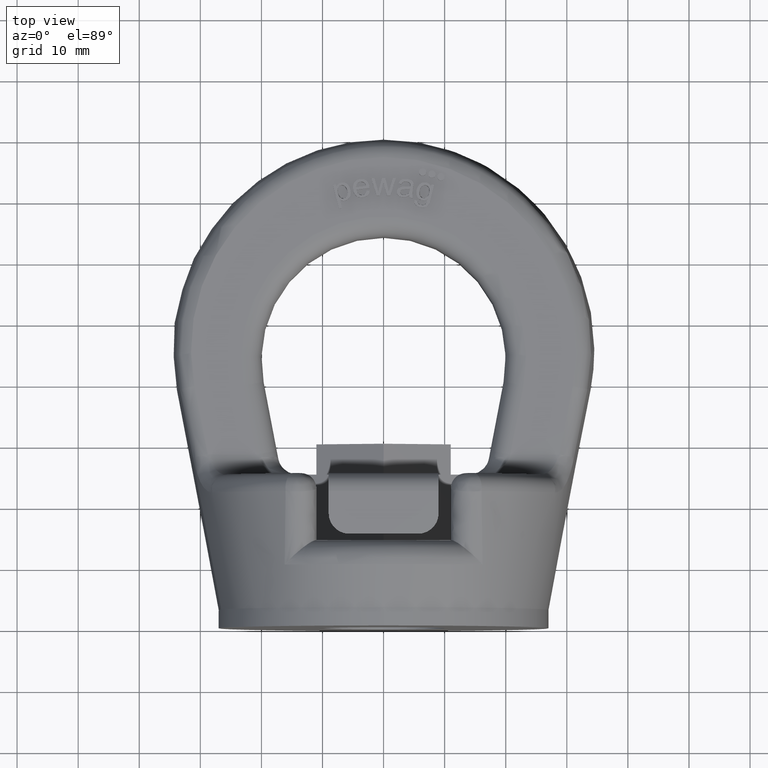
[diagram: clean part render]
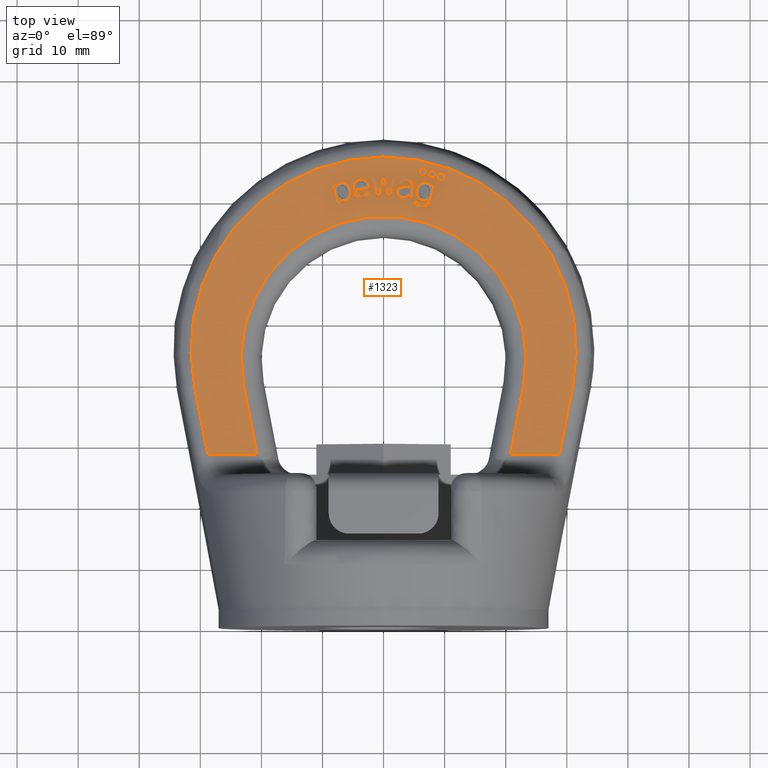
[diagram: same view with one face highlighted and labeled with its STEP entity id]
A machine part, top view. The second image highlights one B-rep face of the part: STEP entity #1323.
In plain terms, the highlighted planar face has unit normal (0, -0, -1).
Its self-contained STEP definition (entity closure, byte-faithful):
#1323=ADVANCED_FACE('',(#1770,#1771,#1772,#1773,#1774,#1775,#1776,#1777,
#1778),#1563,.F.);
#1563=PLANE('',#5106);
#1676=CIRCLE('',#5101,0.6);
#1677=CIRCLE('',#5102,0.600000000000001);
#1678=CIRCLE('',#5103,0.6);
#1679=CIRCLE('',#5104,23.3333333333333);
#1680=CIRCLE('',#5105,31.5238005322962);
#1770=FACE_BOUND('',#1828,.T.);
#1771=FACE_BOUND('',#1829,.T.);
#1772=FACE_BOUND('',#1830,.T.);
#1773=FACE_BOUND('',#1831,.T.);
#1774=FACE_BOUND('',#1832,.T.);
#1775=FACE_BOUND('',#1833,.T.);
#1776=FACE_BOUND('',#1834,.T.);
#1777=FACE_BOUND('',#1835,.T.);
#1778=FACE_BOUND('',#1836,.T.);
#1828=EDGE_LOOP('',(#2700,#2701,#2702,#2703,#2704,#2705,#2706));
#1829=EDGE_LOOP('',(#2707,#2708,#2709,#2710,#2711,#2712,#2713,#2714,#2715,
#2716,#2717,#2718,#2719,#2720,#2721));
#1830=EDGE_LOOP('',(#2722,#2723,#2724,#2725,#2726));
#1831=EDGE_LOOP('',(#2727));
#1832=EDGE_LOOP('',(#2728));
#1833=EDGE_LOOP('',(#2729));
#1834=EDGE_LOOP('',(#2730,#2731,#2732,#2733,#2734,#2735,#2736,#2737));
#1835=EDGE_LOOP('',(#2738,#2739,#2740,#2741,#2742,#2743));
#1836=EDGE_LOOP('',(#2744,#2745,#2746,#2747,#2748,#2749,#2750,#2751,#2752));
#2104=LINE('',#6271,#2374);
#2105=LINE('',#6303,#2375);
#2106=LINE('',#6305,#2376);
#2107=LINE('',#6306,#2377);
#2108=LINE('',#6309,#2378);
#2109=LINE('',#6311,#2379);
#2110=LINE('',#6313,#2380);
#2111=LINE('',#6327,#2381);
#2112=LINE('',#6329,#2382);
#2113=LINE('',#6345,#2383);
#2114=LINE('',#6347,#2384);
#2115=LINE('',#6349,#2385);
#2116=LINE('',#6351,#2386);
#2117=LINE('',#6353,#2387);
#2118=LINE('',#6369,#2388);
#2119=LINE('',#6392,#2389);
#2120=LINE('',#6402,#2390);
#2121=LINE('',#6404,#2391);
#2122=LINE('',#6418,#2392);
#2123=LINE('',#6420,#2393);
#2124=LINE('',#6421,#2394);
#2125=LINE('',#6424,#2395);
#2126=LINE('',#6426,#2396);
#2127=LINE('',#6428,#2397);
#2128=LINE('',#6430,#2398);
#2129=LINE('',#6454,#2399);
#2130=LINE('',#6499,#2400);
#2374=VECTOR('',#5377,1.);
#2375=VECTOR('',#5378,1.);
#2376=VECTOR('',#5379,1.);
#2377=VECTOR('',#5380,1.);
#2378=VECTOR('',#5381,1.);
#2379=VECTOR('',#5382,1.);
#2380=VECTOR('',#5383,1.);
#2381=VECTOR('',#5384,1.);
#2382=VECTOR('',#5385,1.);
#2383=VECTOR('',#5386,1.);
#2384=VECTOR('',#5387,1.);
#2385=VECTOR('',#5388,1.);
#2386=VECTOR('',#5389,1.);
#2387=VECTOR('',#5390,1.);
#2388=VECTOR('',#5391,1.);
#2389=VECTOR('',#5392,1.);
#2390=VECTOR('',#5401,1.);
#2391=VECTOR('',#5402,1.);
#2392=VECTOR('',#5405,1.);
#2393=VECTOR('',#5406,1.);
#2394=VECTOR('',#5407,1.);
#2395=VECTOR('',#5408,1.);
#2396=VECTOR('',#5409,1.);
#2397=VECTOR('',#5410,1.);
#2398=VECTOR('',#5411,1.);
#2399=VECTOR('',#5412,1.);
#2400=VECTOR('',#5413,1.);
#2700=ORIENTED_EDGE('',*,*,#4256,.T.);
#2701=ORIENTED_EDGE('',*,*,#4257,.T.);
#2702=ORIENTED_EDGE('',*,*,#4258,.T.);
#2703=ORIENTED_EDGE('',*,*,#4259,.T.);
#2704=ORIENTED_EDGE('',*,*,#4260,.T.);
#2705=ORIENTED_EDGE('',*,*,#4261,.T.);
#2706=ORIENTED_EDGE('',*,*,#4262,.T.);
#2707=ORIENTED_EDGE('',*,*,#4263,.T.);
#2708=ORIENTED_EDGE('',*,*,#4264,.T.);
#2709=ORIENTED_EDGE('',*,*,#4265,.T.);
#2710=ORIENTED_EDGE('',*,*,#4266,.T.);
#2711=ORIENTED_EDGE('',*,*,#4267,.T.);
#2712=ORIENTED_EDGE('',*,*,#4268,.T.);
#2713=ORIENTED_EDGE('',*,*,#4269,.T.);
#2714=ORIENTED_EDGE('',*,*,#4270,.T.);
#2715=ORIENTED_EDGE('',*,*,#4271,.T.);
#2716=ORIENTED_EDGE('',*,*,#4272,.T.);
#2717=ORIENTED_EDGE('',*,*,#4273,.T.);
#2718=ORIENTED_EDGE('',*,*,#4274,.T.);
#2719=ORIENTED_EDGE('',*,*,#4275,.T.);
#2720=ORIENTED_EDGE('',*,*,#4276,.T.);
#2721=ORIENTED_EDGE('',*,*,#4277,.T.);
#2722=ORIENTED_EDGE('',*,*,#4278,.T.);
#2723=ORIENTED_EDGE('',*,*,#4279,.T.);
#2724=ORIENTED_EDGE('',*,*,#4280,.T.);
#2725=ORIENTED_EDGE('',*,*,#4281,.T.);
#2726=ORIENTED_EDGE('',*,*,#4282,.T.);
#2727=ORIENTED_EDGE('',*,*,#4283,.F.);
#2728=ORIENTED_EDGE('',*,*,#4284,.F.);
#2729=ORIENTED_EDGE('',*,*,#4285,.F.);
#2730=ORIENTED_EDGE('',*,*,#4286,.T.);
#2731=ORIENTED_EDGE('',*,*,#4287,.T.);
#2732=ORIENTED_EDGE('',*,*,#4288,.T.);
#2733=ORIENTED_EDGE('',*,*,#4289,.T.);
#2734=ORIENTED_EDGE('',*,*,#4290,.T.);
#2735=ORIENTED_EDGE('',*,*,#4291,.T.);
#2736=ORIENTED_EDGE('',*,*,#4292,.T.);
#2737=ORIENTED_EDGE('',*,*,#4293,.T.);
#2738=ORIENTED_EDGE('',*,*,#4294,.T.);
#2739=ORIENTED_EDGE('',*,*,#4295,.T.);
#2740=ORIENTED_EDGE('',*,*,#4296,.T.);
#2741=ORIENTED_EDGE('',*,*,#4297,.T.);
#2742=ORIENTED_EDGE('',*,*,#4298,.T.);
#2743=ORIENTED_EDGE('',*,*,#4299,.T.);
#2744=ORIENTED_EDGE('',*,*,#4300,.T.);
#2745=ORIENTED_EDGE('',*,*,#4301,.T.);
#2746=ORIENTED_EDGE('',*,*,#4302,.T.);
#2747=ORIENTED_EDGE('',*,*,#4303,.T.);
#2748=ORIENTED_EDGE('',*,*,#4304,.T.);
#2749=ORIENTED_EDGE('',*,*,#4305,.T.);
#2750=ORIENTED_EDGE('',*,*,#4306,.T.);
#2751=ORIENTED_EDGE('',*,*,#4307,.T.);
#2752=ORIENTED_EDGE('',*,*,#4308,.T.);
#3872=VERTEX_POINT('',#6264);
#3873=VERTEX_POINT('',#6265);
#3874=VERTEX_POINT('',#6270);
#3875=VERTEX_POINT('',#6272);
#3876=VERTEX_POINT('',#6285);
#3877=VERTEX_POINT('',#6302);
#3878=VERTEX_POINT('',#6304);
#3879=VERTEX_POINT('',#6307);
#3880=VERTEX_POINT('',#6308);
#3881=VERTEX_POINT('',#6310);
#3882=VERTEX_POINT('',#6312);
#3883=VERTEX_POINT('',#6314);
#3884=VERTEX_POINT('',#6321);
#3885=VERTEX_POINT('',#6326);
#3886=VERTEX_POINT('',#6328);
#3887=VERTEX_POINT('',#6330);
#3888=VERTEX_POINT('',#6337);
#3889=VERTEX_POINT('',#6344);
#3890=VERTEX_POINT('',#6346);
#3891=VERTEX_POINT('',#6348);
#3892=VERTEX_POINT('',#6350);
#3893=VERTEX_POINT('',#6352);
#3894=VERTEX_POINT('',#6362);
#3895=VERTEX_POINT('',#6363);
#3896=VERTEX_POINT('',#6368);
#3897=VERTEX_POINT('',#6370);
#3898=VERTEX_POINT('',#6391);
#3899=VERTEX_POINT('',#6394);
#3900=VERTEX_POINT('',#6396);
#3901=VERTEX_POINT('',#6398);
#3902=VERTEX_POINT('',#6400);
#3903=VERTEX_POINT('',#6401);
#3904=VERTEX_POINT('',#6403);
#3905=VERTEX_POINT('',#6405);
#3906=VERTEX_POINT('',#6410);
#3907=VERTEX_POINT('',#6412);
#3908=VERTEX_POINT('',#6417);
#3909=VERTEX_POINT('',#6419);
#3910=VERTEX_POINT('',#6422);
#3911=VERTEX_POINT('',#6423);
#3912=VERTEX_POINT('',#6425);
#3913=VERTEX_POINT('',#6427);
#3914=VERTEX_POINT('',#6429);
#3915=VERTEX_POINT('',#6431);
#3916=VERTEX_POINT('',#6455);
#3917=VERTEX_POINT('',#6456);
#3918=VERTEX_POINT('',#6461);
#3919=VERTEX_POINT('',#6478);
#3920=VERTEX_POINT('',#6485);
#3921=VERTEX_POINT('',#6498);
#3922=VERTEX_POINT('',#6500);
#3923=VERTEX_POINT('',#6505);
#3924=VERTEX_POINT('',#6518);
#4256=EDGE_CURVE('',#3872,#3873,#4842,.T.);
#4257=EDGE_CURVE('',#3873,#3874,#4843,.T.);
#4258=EDGE_CURVE('',#3874,#3875,#2104,.T.);
#4259=EDGE_CURVE('',#3875,#3876,#4844,.T.);
#4260=EDGE_CURVE('',#3876,#3877,#4845,.T.);
#4261=EDGE_CURVE('',#3877,#3878,#2105,.T.);
#4262=EDGE_CURVE('',#3878,#3872,#2106,.T.);
#4263=EDGE_CURVE('',#3879,#3880,#2107,.T.);
#4264=EDGE_CURVE('',#3880,#3881,#2108,.T.);
#4265=EDGE_CURVE('',#3881,#3882,#2109,.T.);
#4266=EDGE_CURVE('',#3882,#3883,#2110,.T.);
#4267=EDGE_CURVE('',#3883,#3884,#4846,.T.);
#4268=EDGE_CURVE('',#3884,#3885,#4847,.T.);
#4269=EDGE_CURVE('',#3885,#3886,#2111,.T.);
#4270=EDGE_CURVE('',#3886,#3887,#2112,.T.);
#4271=EDGE_CURVE('',#3887,#3888,#4848,.T.);
#4272=EDGE_CURVE('',#3888,#3889,#4849,.T.);
#4273=EDGE_CURVE('',#3889,#3890,#2113,.T.);
#4274=EDGE_CURVE('',#3890,#3891,#2114,.T.);
#4275=EDGE_CURVE('',#3891,#3892,#2115,.T.);
#4276=EDGE_CURVE('',#3892,#3893,#2116,.T.);
#4277=EDGE_CURVE('',#3893,#3879,#2117,.T.);
#4278=EDGE_CURVE('',#3894,#3895,#4850,.T.);
#4279=EDGE_CURVE('',#3895,#3896,#4851,.T.);
#4280=EDGE_CURVE('',#3896,#3897,#2118,.T.);
#4281=EDGE_CURVE('',#3897,#3898,#4852,.T.);
#4282=EDGE_CURVE('',#3898,#3894,#2119,.T.);
#4283=EDGE_CURVE('',#3899,#3899,#1676,.T.);
#4284=EDGE_CURVE('',#3900,#3900,#1677,.T.);
#4285=EDGE_CURVE('',#3901,#3901,#1678,.T.);
#4286=EDGE_CURVE('',#3902,#3903,#1679,.T.);
#4287=EDGE_CURVE('',#3903,#3904,#2120,.T.);
#4288=EDGE_CURVE('',#3904,#3905,#2121,.T.);
#4289=EDGE_CURVE('',#3905,#3906,#4853,.T.);
#4290=EDGE_CURVE('',#3906,#3907,#1680,.T.);
#4291=EDGE_CURVE('',#3907,#3908,#4854,.T.);
#4292=EDGE_CURVE('',#3908,#3909,#2122,.T.);
#4293=EDGE_CURVE('',#3909,#3902,#2123,.T.);
#4294=EDGE_CURVE('',#3910,#3911,#2124,.T.);
#4295=EDGE_CURVE('',#3911,#3912,#2125,.T.);
#4296=EDGE_CURVE('',#3912,#3913,#2126,.T.);
#4297=EDGE_CURVE('',#3913,#3914,#2127,.T.);
#4298=EDGE_CURVE('',#3914,#3915,#2128,.T.);
#4299=EDGE_CURVE('',#3915,#3910,#4855,.T.);
#4300=EDGE_CURVE('',#3916,#3917,#2129,.T.);
#4301=EDGE_CURVE('',#3917,#3918,#4856,.T.);
#4302=EDGE_CURVE('',#3918,#3919,#4857,.T.);
#4303=EDGE_CURVE('',#3919,#3920,#4858,.T.);
#4304=EDGE_CURVE('',#3920,#3921,#4859,.T.);
#4305=EDGE_CURVE('',#3921,#3922,#2130,.T.);
#4306=EDGE_CURVE('',#3922,#3923,#4860,.T.);
#4307=EDGE_CURVE('',#3923,#3924,#4861,.T.);
#4308=EDGE_CURVE('',#3924,#3916,#4862,.T.);
#4842=B_SPLINE_CURVE_WITH_KNOTS('',3,(#6252,#6253,#6254,#6255,#6256,#6257,
#6258,#6259,#6260,#6261,#6262,#6263),.UNSPECIFIED.,.F.,.F.,(4,2,2,2,2,4),
(0.,0.305645754892089,0.470829306249211,0.636012857606333,0.802206343843955,
1.),.UNSPECIFIED.);
#4843=B_SPLINE_CURVE_WITH_KNOTS('',3,(#6266,#6267,#6268,#6269),
 .UNSPECIFIED.,.F.,.F.,(4,4),(0.,1.),.UNSPECIFIED.);
#4844=B_SPLINE_CURVE_WITH_KNOTS('',3,(#6273,#6274,#6275,#6276,#6277,#6278,
#6279,#6280,#6281,#6282,#6283,#6284),.UNSPECIFIED.,.F.,.F.,(4,2,2,2,2,4),
(0.,0.163304651309284,0.382303784248524,0.619375661168187,0.85644753808786,
1.),.UNSPECIFIED.);
#4845=B_SPLINE_CURVE_WITH_KNOTS('',3,(#6286,#6287,#6288,#6289,#6290,#6291,
#6292,#6293,#6294,#6295,#6296,#6297,#6298,#6299,#6300,#6301),
 .UNSPECIFIED.,.F.,.F.,(4,2,2,2,2,2,2,4),(0.,0.139503666745451,0.312880428291714,
0.486257189837977,0.605370995480449,0.72385410568907,0.842337215897691,
1.),.UNSPECIFIED.);
#4846=B_SPLINE_CURVE_WITH_KNOTS('',3,(#6315,#6316,#6317,#6318,#6319,#6320),
 .UNSPECIFIED.,.F.,.F.,(4,2,4),(0.,0.728909607654965,1.),.UNSPECIFIED.);
#4847=B_SPLINE_CURVE_WITH_KNOTS('',3,(#6322,#6323,#6324,#6325),
 .UNSPECIFIED.,.F.,.F.,(4,4),(0.,1.),.UNSPECIFIED.);
#4848=B_SPLINE_CURVE_WITH_KNOTS('',3,(#6331,#6332,#6333,#6334,#6335,#6336),
 .UNSPECIFIED.,.F.,.F.,(4,2,4),(0.,0.752082276025118,1.),.UNSPECIFIED.);
#4849=B_SPLINE_CURVE_WITH_KNOTS('',3,(#6338,#6339,#6340,#6341,#6342,#6343),
 .UNSPECIFIED.,.F.,.F.,(4,2,4),(0.,0.250451922487275,1.),.UNSPECIFIED.);
#4850=B_SPLINE_CURVE_WITH_KNOTS('',3,(#6354,#6355,#6356,#6357,#6358,#6359,
#6360,#6361),.UNSPECIFIED.,.F.,.F.,(4,2,2,4),(0.,0.36347796861322,0.728087675912443,
1.),.UNSPECIFIED.);
#4851=B_SPLINE_CURVE_WITH_KNOTS('',3,(#6364,#6365,#6366,#6367),
 .UNSPECIFIED.,.F.,.F.,(4,4),(0.,1.),.UNSPECIFIED.);
#4852=B_SPLINE_CURVE_WITH_KNOTS('',3,(#6371,#6372,#6373,#6374,#6375,#6376,
#6377,#6378,#6379,#6380,#6381,#6382,#6383,#6384,#6385,#6386,#6387,#6388,
#6389,#6390),.UNSPECIFIED.,.F.,.F.,(4,2,2,2,2,2,2,2,2,4),(0.,0.102921203122042,
0.206156274885328,0.336063021724234,0.465707475917732,0.599570296299742,
0.733433116681749,0.862845255056168,0.992257393430591,1.),.UNSPECIFIED.);
#4853=B_SPLINE_CURVE_WITH_KNOTS('',3,(#6406,#6407,#6408,#6409),
 .UNSPECIFIED.,.F.,.F.,(4,4),(0.,1.),.UNSPECIFIED.);
#4854=B_SPLINE_CURVE_WITH_KNOTS('',3,(#6413,#6414,#6415,#6416),
 .UNSPECIFIED.,.F.,.F.,(4,4),(0.,1.),.UNSPECIFIED.);
#4855=B_SPLINE_CURVE_WITH_KNOTS('',3,(#6432,#6433,#6434,#6435,#6436,#6437,
#6438,#6439,#6440,#6441,#6442,#6443,#6444,#6445,#6446,#6447,#6448,#6449,
#6450,#6451,#6452,#6453),.UNSPECIFIED.,.F.,.F.,(4,2,2,2,2,2,2,2,2,2,4),
(0.,0.0830854503763923,0.165678296755082,0.27327222095651,0.380460889370536,
0.487248686046698,0.601946689884058,0.717055250849212,0.831909514623434,
0.91582130550871,1.),.UNSPECIFIED.);
#4856=B_SPLINE_CURVE_WITH_KNOTS('',3,(#6457,#6458,#6459,#6460),
 .UNSPECIFIED.,.F.,.F.,(4,4),(0.,1.),.UNSPECIFIED.);
#4857=B_SPLINE_CURVE_WITH_KNOTS('',3,(#6462,#6463,#6464,#6465,#6466,#6467,
#6468,#6469,#6470,#6471,#6472,#6473,#6474,#6475,#6476,#6477),
 .UNSPECIFIED.,.F.,.F.,(4,2,2,2,2,2,2,4),(0.,0.121639465164564,0.243930904991192,
0.445161792748237,0.646392680505282,0.763565096161286,0.881519242448381,
1.),.UNSPECIFIED.);
#4858=B_SPLINE_CURVE_WITH_KNOTS('',3,(#6479,#6480,#6481,#6482,#6483,#6484),
 .UNSPECIFIED.,.F.,.F.,(4,2,4),(0.,0.329344693449402,1.),.UNSPECIFIED.);
#4859=B_SPLINE_CURVE_WITH_KNOTS('',3,(#6486,#6487,#6488,#6489,#6490,#6491,
#6492,#6493,#6494,#6495,#6496,#6497),.UNSPECIFIED.,.F.,.F.,(4,2,2,2,2,4),
(0.,0.0173977322143003,0.217983350684967,0.49067503531644,0.745337517658224,
1.),.UNSPECIFIED.);
#4860=B_SPLINE_CURVE_WITH_KNOTS('',3,(#6501,#6502,#6503,#6504),
 .UNSPECIFIED.,.F.,.F.,(4,4),(0.,1.),.UNSPECIFIED.);
#4861=B_SPLINE_CURVE_WITH_KNOTS('',3,(#6506,#6507,#6508,#6509,#6510,#6511,
#6512,#6513,#6514,#6515,#6516,#6517),.UNSPECIFIED.,.F.,.F.,(4,2,2,2,2,4),
(0.,0.201730292707493,0.402155128097318,0.601755169925868,0.80019954507806,
1.),.UNSPECIFIED.);
#4862=B_SPLINE_CURVE_WITH_KNOTS('',3,(#6519,#6520,#6521,#6522,#6523,#6524,
#6525,#6526,#6527,#6528),.UNSPECIFIED.,.F.,.F.,(4,2,2,2,4),(0.,0.161403604805119,
0.323059797411187,0.661780038481083,1.),.UNSPECIFIED.);
#5101=AXIS2_PLACEMENT_3D('',#6393,#5393,#5394);
#5102=AXIS2_PLACEMENT_3D('',#6395,#5395,#5396);
#5103=AXIS2_PLACEMENT_3D('',#6397,#5397,#5398);
#5104=AXIS2_PLACEMENT_3D('',#6399,#5399,#5400);
#5105=AXIS2_PLACEMENT_3D('',#6411,#5403,#5404);
#5106=AXIS2_PLACEMENT_3D('',#6529,#5414,#5415);
#5377=DIRECTION('',(0.926036898244061,-0.377432991523685,5.03647593080225E-17));
#5378=DIRECTION('',(0.24044171176868,0.970663578816959,-1.29525607496111E-16));
#5379=DIRECTION('',(0.970663578816965,-0.240441711768658,3.20846063083954E-17));
#5380=DIRECTION('',(-0.258675883018079,-0.965964175083537,1.28898517805383E-16));
#5381=DIRECTION('',(-0.999999995678886,9.29635860319111E-5,-1.24050857769651E-20));
#5382=DIRECTION('',(-0.297319028478966,0.954778191678216,-1.27405857188837E-16));
#5383=DIRECTION('',(0.999999995678886,-9.29635860360413E-5,1.24050857775162E-20));
#5384=DIRECTION('',(0.26668775938768,0.963782983348834,-1.28607458997091E-16));
#5385=DIRECTION('',(0.999999995678886,-9.29635860331523E-5,1.24050857771307E-20));
#5386=DIRECTION('',(0.999999995678886,-9.2963586044615E-5,1.24050857786603E-20));
#5387=DIRECTION('',(-0.303109223404765,-0.952955822001713,1.27162679691934E-16));
#5388=DIRECTION('',(-0.999999995678886,9.29635860388953E-5,-1.2405085777897E-20));
#5389=DIRECTION('',(-0.260553429481472,0.965459429694197,-1.28831164445669E-16));
#5390=DIRECTION('',(-0.226101851815541,0.974103666251998,-1.29984653683263E-16));
#5391=DIRECTION('',(0.99995564898741,0.00941807083051332,-1.25674988985414E-18));
#5392=DIRECTION('',(-0.991600377783165,-0.129339440157616,1.72590894777779E-17));
#5393=DIRECTION('',(0.,1.33440267382831E-16,1.));
#5394=DIRECTION('',(0.,1.00000000000001,0.));
#5395=DIRECTION('',(0.,1.33440267382831E-16,1.));
#5396=DIRECTION('',(0.,1.,0.));
#5397=DIRECTION('',(0.,1.33440267382831E-16,1.));
#5398=DIRECTION('',(0.,1.00000000000001,0.));
#5399=DIRECTION('',(0.,-1.33440267382831E-16,-1.));
#5400=DIRECTION('',(0.,1.,-1.48690583655155E-16));
#5401=DIRECTION('',(-0.187770624463788,-0.98221290593663,1.31066752795052E-16));
#5402=DIRECTION('',(1.,0.,0.));
#5403=DIRECTION('',(0.,1.33440267382831E-16,1.));
#5404=DIRECTION('',(0.,1.,-1.10058016272472E-16));
#5405=DIRECTION('',(1.,0.,0.));
#5406=DIRECTION('',(-0.187770624463788,0.98221290593663,-1.31066752795052E-16));
#5407=DIRECTION('',(0.240261234879317,-0.97070826668689,1.29531570657423E-16));
#5408=DIRECTION('',(-0.970708266686891,-0.24026123487931,3.20605234240243E-17));
#5409=DIRECTION('',(-0.240261234879319,0.970708266686889,-1.29531570657423E-16));
#5410=DIRECTION('',(0.970708266686891,0.240261234879313,-3.20605234240248E-17));
#5411=DIRECTION('',(0.240261234879314,-0.970708266686891,1.29531570657423E-16));
#5412=DIRECTION('',(-0.991576312927654,0.129523803375288,-1.72836909548398E-17));
#5413=DIRECTION('',(-0.965560779386231,0.260177595713109,-3.47181679389794E-17));
#5414=DIRECTION('',(0.,-1.33440267382831E-16,-1.));
#5415=DIRECTION('',(0.,1.,-1.33573707650214E-16));
#6252=CARTESIAN_POINT('',(8.27434339115758,72.4085009868514,8.));
#6253=CARTESIAN_POINT('',(8.07357548447737,71.5980006232652,8.));
#6254=CARTESIAN_POINT('',(7.87280757779716,70.7875002596789,8.));
#6255=CARTESIAN_POINT('',(7.56353642743316,69.5389721260663,8.));
#6256=CARTESIAN_POINT('',(7.44129309872869,69.2403404994143,8.));
#6257=CARTESIAN_POINT('',(7.16883419307576,68.9198830123601,8.));
#6258=CARTESIAN_POINT('',(6.98940056581616,68.8104161516886,8.));
#6259=CARTESIAN_POINT('',(6.54375091632207,68.6966324594976,8.));
#6260=CARTESIAN_POINT('',(6.28825700489696,68.703676575954,8.));
#6261=CARTESIAN_POINT('',(5.6596343761219,68.8593918043995,8.));
#6262=CARTESIAN_POINT('',(5.40242663133442,69.003224048579,8.));
#6263=CARTESIAN_POINT('',(5.22960993360185,69.2062715800014,8.));
#6264=CARTESIAN_POINT('',(8.27434339115758,72.4085009868514,8.));
#6265=CARTESIAN_POINT('',(5.22960993360185,69.2062715800014,8.));
#6266=CARTESIAN_POINT('',(5.22960993360185,69.2062715800014,8.));
#6267=CARTESIAN_POINT('',(5.05679323586928,69.4093191114237,8.));
#6268=CARTESIAN_POINT('',(5.01207145875811,69.6618103112016,8.));
#6269=CARTESIAN_POINT('',(5.09418791585387,69.9630022651119,8.));
#6270=CARTESIAN_POINT('',(5.09418791585387,69.9630022651119,8.));
#6271=CARTESIAN_POINT('',(25.0227953465998,61.8405247118414,8.));
#6272=CARTESIAN_POINT('',(5.5491835131004,69.7775557135495,8.));
#6273=CARTESIAN_POINT('',(5.5491835131004,69.7775557135495,8.));
#6274=CARTESIAN_POINT('',(5.53295618145949,69.6297696631202,8.));
#6275=CARTESIAN_POINT('',(5.56169703073023,69.5119586514957,8.));
#6276=CARTESIAN_POINT('',(5.73425329869985,69.3063305537478,8.));
#6277=CARTESIAN_POINT('',(5.88768540274292,69.2214214860374,8.));
#6278=CARTESIAN_POINT('',(6.32125310008135,69.1140230406948,8.));
#6279=CARTESIAN_POINT('',(6.50489951108708,69.1149173211513,8.));
#6280=CARTESIAN_POINT('',(6.79327112090337,69.2311339071627,8.));
#6281=CARTESIAN_POINT('',(6.90689908824658,69.3347630641812,8.));
#6282=CARTESIAN_POINT('',(7.03825244906068,69.5730340798784,8.));
#6283=CARTESIAN_POINT('',(7.1006563298978,69.7748652236077,8.));
#6284=CARTESIAN_POINT('',(7.17564527398586,70.0862563737519,8.));
#6285=CARTESIAN_POINT('',(7.17564527398586,70.0862563737519,8.));
#6286=CARTESIAN_POINT('',(7.17564527398586,70.0862563737519,8.));
#6287=CARTESIAN_POINT('',(6.90239164109749,69.89250049743,8.));
#6288=CARTESIAN_POINT('',(6.6083498829043,69.8356697996431,8.));
#6289=CARTESIAN_POINT('',(5.89887546907778,70.0114127102038,8.));
#6290=CARTESIAN_POINT('',(5.62810545469386,70.2260736451176,8.));
#6291=CARTESIAN_POINT('',(5.33584367423884,70.8909333125959,8.));
#6292=CARTESIAN_POINT('',(5.31061958887863,71.2524490415041,8.));
#6293=CARTESIAN_POINT('',(5.4737435130563,71.9109805869179,8.));
#6294=CARTESIAN_POINT('',(5.58452896762994,72.1460354337461,8.));
#6295=CARTESIAN_POINT('',(5.89447899434467,72.5508063519342,8.));
#6296=CARTESIAN_POINT('',(6.08110590239848,72.6913958210144,8.));
#6297=CARTESIAN_POINT('',(6.51808440001605,72.8445956410531,8.));
#6298=CARTESIAN_POINT('',(6.75390597766466,72.8525956030073,8.));
#6299=CARTESIAN_POINT('',(7.34513465585342,72.70614317754,8.));
#6300=CARTESIAN_POINT('',(7.58984738828909,72.5032078865876,8.));
#6301=CARTESIAN_POINT('',(7.74248125878241,72.1797092712376,8.));
#6302=CARTESIAN_POINT('',(7.74248125878241,72.1797092712376,8.));
#6303=CARTESIAN_POINT('',(13.5640594000083,95.6814296314776,8.));
#6304=CARTESIAN_POINT('',(7.82662663143515,72.5194042765642,8.));
#6305=CARTESIAN_POINT('',(30.7625672314275,66.837974645087,8.));
#6306=CARTESIAN_POINT('',(6.70422752256067,97.9790202935226,8.));
#6307=CARTESIAN_POINT('',(-0.0129316652247376,72.8953709867937,8.));
#6308=CARTESIAN_POINT('',(-0.609741961430768,70.6667234656959,8.));
#6309=CARTESIAN_POINT('',(36.4982023885805,70.663273778104,8.));
#6310=CARTESIAN_POINT('',(-1.13137923385623,70.6667719589676,8.));
#6311=CARTESIAN_POINT('',(-3.2930132647702,77.6084098408906,8.));
#6312=CARTESIAN_POINT('',(-2.0338234352698,73.5647837247268,8.));
#6313=CARTESIAN_POINT('',(36.4984717903463,73.5612016243689,8.));
#6314=CARTESIAN_POINT('',(-1.51739212364699,73.5647357154199,8.));
#6315=CARTESIAN_POINT('',(-1.51739212364699,73.5647357154199,8.));
#6316=CARTESIAN_POINT('',(-1.36091808013349,73.007033778543,8.));
#6317=CARTESIAN_POINT('',(-1.20444403661998,72.4493318416661,8.));
#6318=CARTESIAN_POINT('',(-0.98977538378535,71.68421373783,8.));
#6319=CARTESIAN_POINT('',(-0.93139502957195,71.4768497300493,8.));
#6320=CARTESIAN_POINT('',(-0.87310754780469,71.2694596426793,8.));
#6321=CARTESIAN_POINT('',(-0.87310754780469,71.2694596426793,8.));
#6322=CARTESIAN_POINT('',(-0.87310754780469,71.2694596426793,8.));
#6323=CARTESIAN_POINT('',(-0.865816348848716,71.3001573533306,8.));
#6324=CARTESIAN_POINT('',(-0.814779383073031,71.4996921337884,8.));
#6325=CARTESIAN_POINT('',(-0.721037937765908,71.867040801239,8.));
#6326=CARTESIAN_POINT('',(-0.721037937765908,71.867040801239,8.));
#6327=CARTESIAN_POINT('',(6.58690878451612,98.2772319188471,8.));
#6328=CARTESIAN_POINT('',(-0.251302456442698,73.5646180151837,8.));
#6329=CARTESIAN_POINT('',(36.4984717903463,73.5612016243691,8.));
#6330=CARTESIAN_POINT('',(0.262005278698517,73.5645702962557,8.));
#6331=CARTESIAN_POINT('',(0.262005278698517,73.5645702962557,8.));
#6332=CARTESIAN_POINT('',(0.409108339093277,73.0041404848975,8.));
#6333=CARTESIAN_POINT('',(0.556211399488038,72.4437106735393,8.));
#6334=CARTESIAN_POINT('',(0.75180577138605,71.698539793672,8.));
#6335=CARTESIAN_POINT('',(0.80184634167395,71.5142088542864,8.));
#6336=CARTESIAN_POINT('',(0.851112282569527,71.329672850339,8.));
#6337=CARTESIAN_POINT('',(0.851112282569527,71.329672850339,8.));
#6338=CARTESIAN_POINT('',(0.851112282569527,71.329672850339,8.));
#6339=CARTESIAN_POINT('',(0.907354004196459,71.5162456051468,8.));
#6340=CARTESIAN_POINT('',(0.963595725823392,71.7028183599546,8.));
#6341=CARTESIAN_POINT('',(1.18815667575897,72.4477627506979,8.));
#6342=CARTESIAN_POINT('',(1.35659339543092,73.0060989625197,8.));
#6343=CARTESIAN_POINT('',(1.52497136942122,73.5644528863984,8.));
#6344=CARTESIAN_POINT('',(1.52497136942122,73.5644528863984,8.));
#6345=CARTESIAN_POINT('',(36.4984717903461,73.5612016243687,8.));
#6346=CARTESIAN_POINT('',(2.01120810838866,73.5644076840873,8.));
#6347=CARTESIAN_POINT('',(9.9272887022115,98.452053809077,8.));
#6348=CARTESIAN_POINT('',(1.08948364455394,70.6665654995894,8.));
#6349=CARTESIAN_POINT('',(36.4982023885804,70.6632737781037,8.));
#6350=CARTESIAN_POINT('',(0.569928756449546,70.6666137992752,8.));
#6351=CARTESIAN_POINT('',(-1.85423344445525,79.6491486314954,8.));
#6352=CARTESIAN_POINT('',(0.101553620861823,72.4021395691235,8.));
#6353=CARTESIAN_POINT('',(-1.91355295862219,81.0837257268756,8.));
#6354=CARTESIAN_POINT('',(-4.46936810288726,71.6438999517978,8.));
#6355=CARTESIAN_POINT('',(-4.40962308695014,71.3307570979705,8.));
#6356=CARTESIAN_POINT('',(-4.28726839299818,71.1011129137405,8.));
#6357=CARTESIAN_POINT('',(-3.91676373703312,70.8083668402992,8.));
#6358=CARTESIAN_POINT('',(-3.70193014911682,70.7512671831291,8.));
#6359=CARTESIAN_POINT('',(-3.27656217291153,70.8067500743583,8.));
#6360=CARTESIAN_POINT('',(-3.12778331023684,70.8736256407704,8.));
#6361=CARTESIAN_POINT('',(-3.01090373012027,70.9838100115434,8.));
#6362=CARTESIAN_POINT('',(-4.46936810288726,71.6438999517978,8.));
#6363=CARTESIAN_POINT('',(-3.01090373012027,70.9838100115434,8.));
#6364=CARTESIAN_POINT('',(-3.01090373012027,70.9838100115434,8.));
#6365=CARTESIAN_POINT('',(-2.89518894695993,71.0948743995536,8.));
#6366=CARTESIAN_POINT('',(-2.81243224965396,71.2573650675167,8.));
#6367=CARTESIAN_POINT('',(-2.76393078557063,71.4731767171189,8.));
#6368=CARTESIAN_POINT('',(-2.76393078557063,71.4731767171189,8.));
#6369=CARTESIAN_POINT('',(36.6709964823258,71.8445941280624,8.));
#6370=CARTESIAN_POINT('',(-2.24376392451967,71.4780759027439,8.));
#6371=CARTESIAN_POINT('',(-2.24376392451967,71.4780759027439,8.));
#6372=CARTESIAN_POINT('',(-2.28694558202141,71.1731787028085,8.));
#6373=CARTESIAN_POINT('',(-2.40687148822156,70.9253479560844,8.));
#6374=CARTESIAN_POINT('',(-2.80081156359098,70.5432376140093,8.));
#6375=CARTESIAN_POINT('',(-3.06941677853102,70.4261497987623,8.));
#6376=CARTESIAN_POINT('',(-3.8365245608624,70.3260920604534,8.));
#6377=CARTESIAN_POINT('',(-4.19197552968391,70.4107861400315,8.));
#6378=CARTESIAN_POINT('',(-4.76093299418428,70.8643979100914,8.));
#6379=CARTESIAN_POINT('',(-4.93355073964896,71.2097892442468,8.));
#6380=CARTESIAN_POINT('',(-5.05756307572232,72.1605485729578,8.));
#6381=CARTESIAN_POINT('',(-4.97954180323884,72.5525458861287,8.));
#6382=CARTESIAN_POINT('',(-4.54325931331541,73.1522568400451,8.));
#6383=CARTESIAN_POINT('',(-4.2313791201077,73.3291540278519,8.));
#6384=CARTESIAN_POINT('',(-3.43742772762745,73.4327131136656,8.));
#6385=CARTESIAN_POINT('',(-3.10029609577725,73.3435656553785,8.));
#6386=CARTESIAN_POINT('',(-2.53642894195904,72.8846287413219,8.));
#6387=CARTESIAN_POINT('',(-2.36462450750119,72.5334730361912,8.));
#6388=CARTESIAN_POINT('',(-2.29897870313365,72.0301895494882,8.));
#6389=CARTESIAN_POINT('',(-2.29432008196049,71.9864234509696,8.));
#6390=CARTESIAN_POINT('',(-2.28884100156308,71.9283171029533,8.));
#6391=CARTESIAN_POINT('',(-2.28884100156308,71.9283171029533,8.));
#6392=CARTESIAN_POINT('',(38.1688617014642,77.205419386205,8.));
#6393=CARTESIAN_POINT('',(6.38264742984435,74.5401671866135,8.));
#6394=CARTESIAN_POINT('',(6.38264742984435,75.1401671866135,8.));
#6395=CARTESIAN_POINT('',(7.90120021519117,74.1829593505916,8.));
#6396=CARTESIAN_POINT('',(7.90120021519117,74.7829593505916,8.));
#6397=CARTESIAN_POINT('',(9.4,73.7502941161932,8.));
#6398=CARTESIAN_POINT('',(9.4,74.3502941161932,8.));
#6399=CARTESIAN_POINT('',(3.19803995620443E-17,44.,8.00000000000001));
#6400=CARTESIAN_POINT('',(-22.9183011385214,39.6186854291783,8.00000000000001));
#6401=CARTESIAN_POINT('',(22.9183011385214,39.6186854291783,8.00000000000001));
#6402=CARTESIAN_POINT('',(20.6412147537698,27.7074312517874,8.00000000000001));
#6403=CARTESIAN_POINT('',(20.7608690812529,28.3333333333333,8.00000000000001));
#6404=CARTESIAN_POINT('',(36.5,28.3333333333333,8.00000000000001));
#6405=CARTESIAN_POINT('',(28.7768436450687,28.3333333333333,8.00000000000001));
#6406=CARTESIAN_POINT('',(28.7768436450687,28.3333333333333,8.00000000000001));
#6407=CARTESIAN_POINT('',(29.500710245826,32.052501134001,8.00000000000001));
#6408=CARTESIAN_POINT('',(30.2236540263723,35.7718486196315,8.00000000000001));
#6409=CARTESIAN_POINT('',(30.9458560264634,39.4913400171588,8.00000000000001));
#6410=CARTESIAN_POINT('',(30.9458560264634,39.4913400171588,8.00000000000001));
#6411=CARTESIAN_POINT('',(0.,45.5,8.00000000000001));
#6412=CARTESIAN_POINT('',(-30.9458560264635,39.4913400171589,8.00000000000001));
#6413=CARTESIAN_POINT('',(-30.9458560264635,39.4913400171589,8.00000000000001));
#6414=CARTESIAN_POINT('',(-30.2236540263723,35.7718486196316,8.00000000000001));
#6415=CARTESIAN_POINT('',(-29.5007102458262,32.052501134001,8.00000000000001));
#6416=CARTESIAN_POINT('',(-28.7768436450689,28.3333333333333,8.00000000000001));
#6417=CARTESIAN_POINT('',(-28.7768436450689,28.3333333333333,8.00000000000001));
#6418=CARTESIAN_POINT('',(36.5,28.3333333333333,8.00000000000001));
#6419=CARTESIAN_POINT('',(-20.7608690812529,28.3333333333333,8.00000000000001));
#6420=CARTESIAN_POINT('',(-22.9183011385214,39.6186854291783,8.00000000000001));
#6421=CARTESIAN_POINT('',(-9.30706052132489,78.6622363229599,8.));
#6422=CARTESIAN_POINT('',(-7.16475738105177,70.0068601485348,8.));
#6423=CARTESIAN_POINT('',(-6.82596998615414,68.638084511293,8.));
#6424=CARTESIAN_POINT('',(38.9810905351708,79.9758481883327,8.));
#6425=CARTESIAN_POINT('',(-7.31110303021969,68.518008615941,8.));
#6426=CARTESIAN_POINT('',(-9.79219356539044,78.5421604276079,8.));
#6427=CARTESIAN_POINT('',(-8.27411480512099,72.40878813051,8.));
#6428=CARTESIAN_POINT('',(38.0180787602695,83.8666277029018,8.));
#6429=CARTESIAN_POINT('',(-7.83244159625298,72.5181072269034,8.));
#6430=CARTESIAN_POINT('',(-9.35052035652245,78.6514795240015,8.));
#6431=CARTESIAN_POINT('',(-7.74196716858801,72.1525706271174,8.));
#6432=CARTESIAN_POINT('',(-7.74196716858801,72.1525706271174,8.));
#6433=CARTESIAN_POINT('',(-7.67326873979466,72.3213729737808,8.));
#6434=CARTESIAN_POINT('',(-7.58156983798796,72.4579185188622,8.));
#6435=CARTESIAN_POINT('',(-7.35486652303359,72.6653788569256,8.));
#6436=CARTESIAN_POINT('',(-7.20436430209649,72.7410295289314,8.));
#6437=CARTESIAN_POINT('',(-6.77380872548831,72.8475968860563,8.));
#6438=CARTESIAN_POINT('',(-6.54203141469326,72.8385524461402,8.));
#6439=CARTESIAN_POINT('',(-6.10792188225498,72.6850606774646,8.));
#6440=CARTESIAN_POINT('',(-5.9233459738623,72.5447211923004,8.));
#6441=CARTESIAN_POINT('',(-5.62228164904322,72.141545329279,8.));
#6442=CARTESIAN_POINT('',(-5.51223242224889,71.9064577111844,8.));
#6443=CARTESIAN_POINT('',(-5.37455394536742,71.3502063636841,8.));
#6444=CARTESIAN_POINT('',(-5.3629420207375,71.0779452815134,8.));
#6445=CARTESIAN_POINT('',(-5.459754555242,70.5660905862769,8.));
#6446=CARTESIAN_POINT('',(-5.56919911864198,70.3511792283072,8.));
#6447=CARTESIAN_POINT('',(-5.90808723427736,70.0061582628115,8.));
#6448=CARTESIAN_POINT('',(-6.10368918238332,69.8931521795531,8.));
#6449=CARTESIAN_POINT('',(-6.48674214842674,69.7983422538482,8.));
#6450=CARTESIAN_POINT('',(-6.6406411120285,69.7960918884837,8.));
#6451=CARTESIAN_POINT('',(-6.93076251174171,69.8657653596914,8.));
#6452=CARTESIAN_POINT('',(-7.05655748045463,69.9250625982898,8.));
#6453=CARTESIAN_POINT('',(-7.16475738105177,70.0068601485348,8.));
#6454=CARTESIAN_POINT('',(33.4337230913057,66.5259552892468,8.));
#6455=CARTESIAN_POINT('',(4.78217833438281,70.2685386901522,8.));
#6456=CARTESIAN_POINT('',(4.26493516887048,70.336103133951,8.));
#6457=CARTESIAN_POINT('',(4.26493516887048,70.336103133951,8.));
#6458=CARTESIAN_POINT('',(4.2264354621162,70.4432974149822,8.));
#6459=CARTESIAN_POINT('',(4.20890504535555,70.5663281077973,8.));
#6460=CARTESIAN_POINT('',(4.21207884045423,70.7031658927486,8.));
#6461=CARTESIAN_POINT('',(4.21207884045423,70.7031658927486,8.));
#6462=CARTESIAN_POINT('',(4.21207884045423,70.7031658927486,8.));
#6463=CARTESIAN_POINT('',(4.00829441644147,70.5739571914645,8.));
#6464=CARTESIAN_POINT('',(3.81756866179979,70.4884495082482,8.));
#6465=CARTESIAN_POINT('',(3.46154800301095,70.4066468567667,8.));
#6466=CARTESIAN_POINT('',(3.27565225492654,70.3992811160162,8.));
#6467=CARTESIAN_POINT('',(2.75944151090225,70.4667107006457,8.));
#6468=CARTESIAN_POINT('',(2.52276574436227,70.5760561887167,8.));
#6469=CARTESIAN_POINT('',(2.21822884376858,70.9295557377215,8.));
#6470=CARTESIAN_POINT('',(2.15721801780019,71.1377279137801,8.));
#6471=CARTESIAN_POINT('',(2.20692016798258,71.5182253477508,8.));
#6472=CARTESIAN_POINT('',(2.25679011712857,71.6427716519726,8.));
#6473=CARTESIAN_POINT('',(2.41762887621601,71.8578368687203,8.));
#6474=CARTESIAN_POINT('',(2.51511124868685,71.9402918890764,8.));
#6475=CARTESIAN_POINT('',(2.74452660013721,72.0530548310555,8.));
#6476=CARTESIAN_POINT('',(2.86976866520057,72.0910718404518,8.));
#6477=CARTESIAN_POINT('',(3.0066900220883,72.1103376204478,8.));
#6478=CARTESIAN_POINT('',(3.0066900220883,72.1103376204478,8.));
#6479=CARTESIAN_POINT('',(3.0066900220883,72.1103376204478,8.));
#6480=CARTESIAN_POINT('',(3.10808354013174,72.1228924949662,8.));
#6481=CARTESIAN_POINT('',(3.25786832904631,72.1280943287056,8.));
#6482=CARTESIAN_POINT('',(3.86273151717706,72.1211530715531,8.));
#6483=CARTESIAN_POINT('',(4.16528291755921,72.1375286838013,8.));
#6484=CARTESIAN_POINT('',(4.36269855016989,72.1777876845578,8.));
#6485=CARTESIAN_POINT('',(4.36269855016989,72.1777876845578,8.));
#6486=CARTESIAN_POINT('',(4.36269855016989,72.1777876845578,8.));
#6487=CARTESIAN_POINT('',(4.37351097157809,72.2444855145981,8.));
#6488=CARTESIAN_POINT('',(4.38011003388656,72.2869663680336,8.));
#6489=CARTESIAN_POINT('',(4.40834085519014,72.503088910529,8.));
#6490=CARTESIAN_POINT('',(4.37913985800705,72.6493154880161,8.));
#6491=CARTESIAN_POINT('',(4.18491989899928,72.8694786188156,8.));
#6492=CARTESIAN_POINT('',(4.0034078244789,72.9481325372626,8.));
#6493=CARTESIAN_POINT('',(3.52023456807217,73.0112466284758,8.));
#6494=CARTESIAN_POINT('',(3.34368357743714,72.9940615174399,8.));
#6495=CARTESIAN_POINT('',(3.09973936340847,72.8628748458202,8.));
#6496=CARTESIAN_POINT('',(2.9996225964512,72.7314763448426,8.));
#6497=CARTESIAN_POINT('',(2.91929632657491,72.5345423970358,8.));
#6498=CARTESIAN_POINT('',(2.91929632657491,72.5345423970358,8.));
#6499=CARTESIAN_POINT('',(29.8392174126727,65.2807677051726,8.));
#6500=CARTESIAN_POINT('',(2.44357314897793,72.6627295761493,8.));
#6501=CARTESIAN_POINT('',(2.44357314897793,72.6627295761493,8.));
#6502=CARTESIAN_POINT('',(2.51460762546178,72.8608772564795,8.));
#6503=CARTESIAN_POINT('',(2.60834845850397,73.0158120061067,8.));
#6504=CARTESIAN_POINT('',(2.72582806959255,73.1273989658617,8.));
#6505=CARTESIAN_POINT('',(2.72582806959255,73.1273989658617,8.));
#6506=CARTESIAN_POINT('',(2.72582806959255,73.1273989658617,8.));
#6507=CARTESIAN_POINT('',(2.84240779826024,73.2401354446098,8.));
#6508=CARTESIAN_POINT('',(3.00160286094268,73.3173781258476,8.));
#6509=CARTESIAN_POINT('',(3.40006557534351,73.4031661684638,8.));
#6510=CARTESIAN_POINT('',(3.6266710341776,73.4080685615953,8.));
#6511=CARTESIAN_POINT('',(4.12739545588116,73.3426618645046,8.));
#6512=CARTESIAN_POINT('',(4.32590643459124,73.286804332436,8.));
#6513=CARTESIAN_POINT('',(4.62378825481331,73.1305894731997,8.));
#6514=CARTESIAN_POINT('',(4.72880920322004,73.0432605689372,8.));
#6515=CARTESIAN_POINT('',(4.85303935615069,72.8489273451742,8.));
#6516=CARTESIAN_POINT('',(4.88979065105536,72.7322481979174,8.));
#6517=CARTESIAN_POINT('',(4.90120329585652,72.5945370444205,8.));
#6518=CARTESIAN_POINT('',(4.90120329585652,72.5945370444205,8.));
#6519=CARTESIAN_POINT('',(4.90120329585652,72.5945370444205,8.));
#6520=CARTESIAN_POINT('',(4.90685383615875,72.5091771921507,8.));
#6521=CARTESIAN_POINT('',(4.89562996519164,72.3589433246802,8.));
#6522=CARTESIAN_POINT('',(4.83912414289539,71.9263600197481,8.));
#6523=CARTESIAN_POINT('',(4.81084914190274,71.7098992573115,8.));
#6524=CARTESIAN_POINT('',(4.72332917789268,71.0398855535817,8.));
#6525=CARTESIAN_POINT('',(4.69627737583601,70.7524028915432,8.));
#6526=CARTESIAN_POINT('',(4.70835093575522,70.5074601082106,8.));
#6527=CARTESIAN_POINT('',(4.73454726435243,70.3862135012913,8.));
#6528=CARTESIAN_POINT('',(4.78217833438281,70.2685386901522,8.));
#6529=CARTESIAN_POINT('',(36.5,90.,8.));